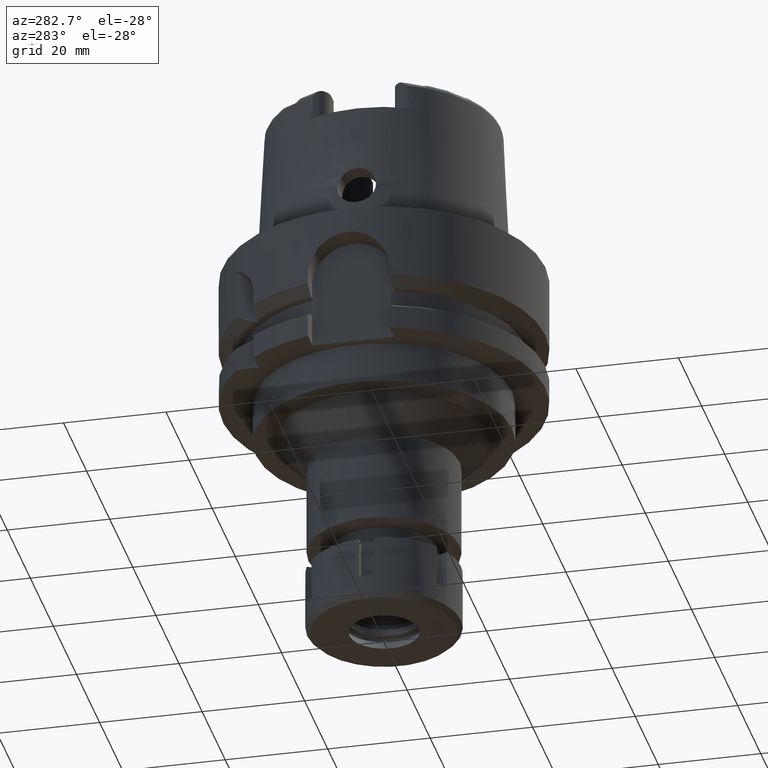
[diagram: clean part render]
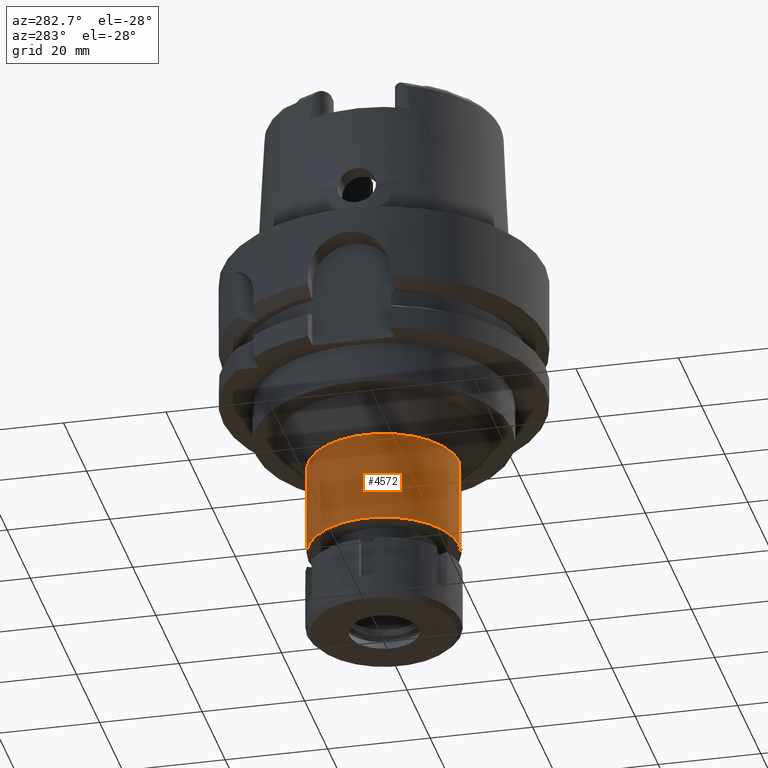
[diagram: same view with one face highlighted and labeled with its STEP entity id]
A machine part, auxiliary view. The second image highlights one B-rep face of the part: STEP entity #4572.
In plain terms, the highlighted cylindrical surface (partial cylindrical patch) has radius 14.75 mm, axis along (0, 0, -1).
Its self-contained STEP definition (entity closure, byte-faithful):
#53 = LINE ( 'NONE', #2438, #5397 ) ;
#173 = CARTESIAN_POINT ( 'NONE',  ( 0.0000000000000000000, 14.75000000000000000, -40.00000000000000000 ) ) ;
#236 = AXIS2_PLACEMENT_3D ( 'NONE', #5405, #2071, #3537 ) ;
#269 = ORIENTED_EDGE ( 'NONE', *, *, #2610, .T. ) ;
#304 = ORIENTED_EDGE ( 'NONE', *, *, #2065, .T. ) ;
#637 = AXIS2_PLACEMENT_3D ( 'NONE', #2451, #1535, #5406 ) ;
#1535 = DIRECTION ( 'NONE',  ( 0.0000000000000000000, 0.0000000000000000000, 1.000000000000000000 ) ) ;
#1563 = DIRECTION ( 'NONE',  ( 0.0000000000000000000, 0.0000000000000000000, -1.000000000000000000 ) ) ;
#1589 = LINE ( 'NONE', #173, #3883 ) ;
#2065 = EDGE_CURVE ( 'NONE', #3091, #3037, #3679, .T. ) ;
#2071 = DIRECTION ( 'NONE',  ( 0.0000000000000000000, 0.0000000000000000000, -1.000000000000000000 ) ) ;
#2377 = EDGE_CURVE ( 'NONE', #3124, #3037, #53, .T. ) ;
#2387 = DIRECTION ( 'NONE',  ( 0.0000000000000000000, -1.000000000000000000, 0.0000000000000000000 ) ) ;
#2431 = CARTESIAN_POINT ( 'NONE',  ( 0.0000000000000000000, 14.75000000000000000, -58.00000000000000000 ) ) ;
#2438 = CARTESIAN_POINT ( 'NONE',  ( 0.0000000000000000000, -14.75000000000000000, -40.00000000000000000 ) ) ;
#2451 = CARTESIAN_POINT ( 'NONE',  ( 0.0000000000000000000, 1.677766114831999956E-14, -58.00000000000000000 ) ) ;
#2470 = CIRCLE ( 'NONE', #236, 14.75000000000000000 ) ;
#2610 = EDGE_CURVE ( 'NONE', #4211, #3091, #1589, .T. ) ;
#2902 = FACE_OUTER_BOUND ( 'NONE', #6043, .T. ) ;
#3037 = VERTEX_POINT ( 'NONE', #5351 ) ;
#3091 = VERTEX_POINT ( 'NONE', #2431 ) ;
#3124 = VERTEX_POINT ( 'NONE', #4428 ) ;
#3489 = AXIS2_PLACEMENT_3D ( 'NONE', #4414, #1563, #2387 ) ;
#3537 = DIRECTION ( 'NONE',  ( 0.0000000000000000000, -1.000000000000000000, 0.0000000000000000000 ) ) ;
#3552 = DIRECTION ( 'NONE',  ( 0.0000000000000000000, 0.0000000000000000000, -1.000000000000000000 ) ) ;
#3679 = CIRCLE ( 'NONE', #637, 14.75000000000000000 ) ;
#3883 = VECTOR ( 'NONE', #3552, 1000.000000000000000 ) ;
#4192 = EDGE_CURVE ( 'NONE', #3124, #4211, #2470, .T. ) ;
#4211 = VERTEX_POINT ( 'NONE', #5339 ) ;
#4414 = CARTESIAN_POINT ( 'NONE',  ( 0.0000000000000000000, 1.677766114831999956E-14, 37.00000000000000000 ) ) ;
#4428 = CARTESIAN_POINT ( 'NONE',  ( 0.0000000000000000000, -14.75000000000000000, -40.00000000000000000 ) ) ;
#4572 = ADVANCED_FACE ( 'NONE', ( #2902 ), #5371, .T. ) ;
#4787 = ORIENTED_EDGE ( 'NONE', *, *, #4192, .T. ) ;
#5290 = DIRECTION ( 'NONE',  ( 0.0000000000000000000, 0.0000000000000000000, -1.000000000000000000 ) ) ;
#5339 = CARTESIAN_POINT ( 'NONE',  ( 0.0000000000000000000, 14.75000000000000000, -40.00000000000000000 ) ) ;
#5351 = CARTESIAN_POINT ( 'NONE',  ( 0.0000000000000000000, -14.75000000000000000, -58.00000000000000000 ) ) ;
#5356 = ORIENTED_EDGE ( 'NONE', *, *, #2377, .F. ) ;
#5371 = CYLINDRICAL_SURFACE ( 'NONE', #3489, 14.75000000000000000 ) ;
#5397 = VECTOR ( 'NONE', #5290, 1000.000000000000000 ) ;
#5405 = CARTESIAN_POINT ( 'NONE',  ( 0.0000000000000000000, 0.0000000000000000000, -40.00000000000000000 ) ) ;
#5406 = DIRECTION ( 'NONE',  ( 0.0000000000000000000, 1.000000000000000000, 0.0000000000000000000 ) ) ;
#6043 = EDGE_LOOP ( 'NONE', ( #304, #5356, #4787, #269 ) ) ;